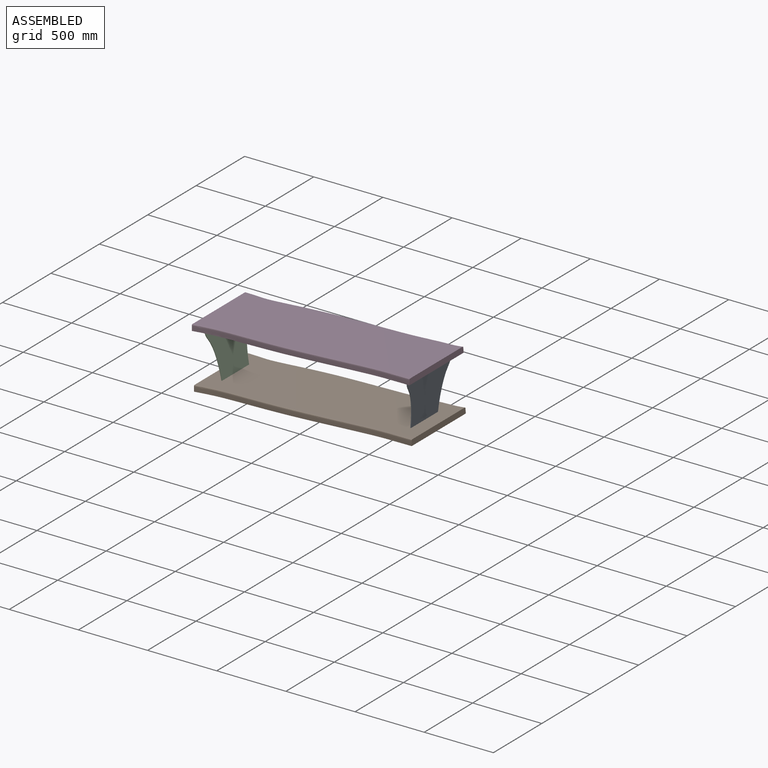
[diagram: assembled view]
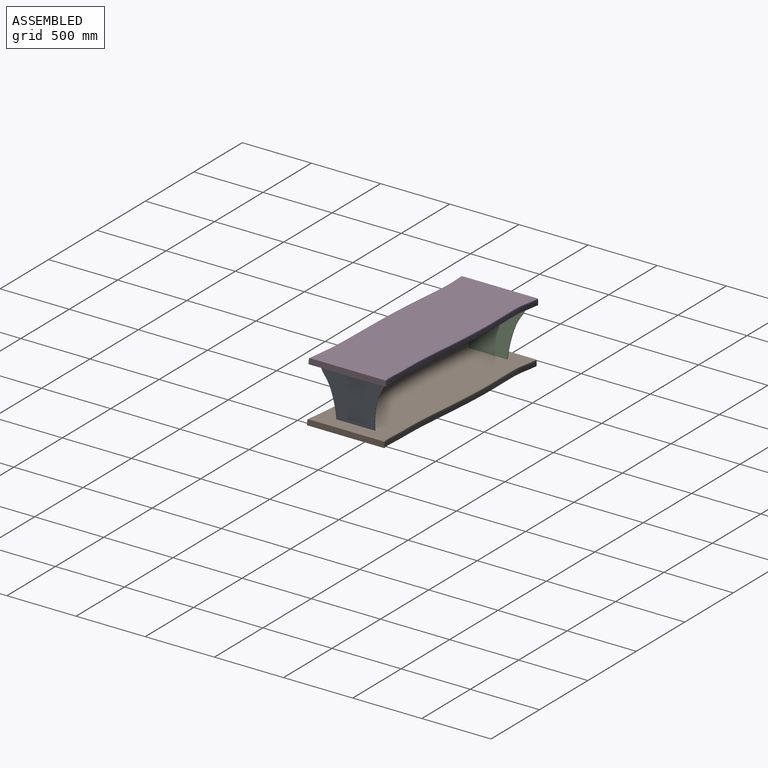
[diagram: assembled view, second angle]
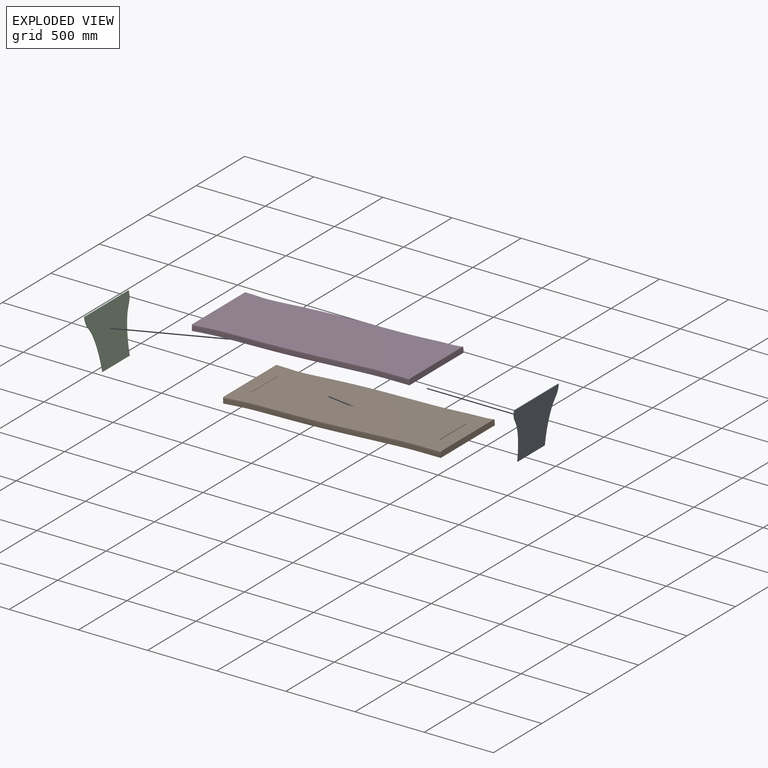
[diagram: exploded view]
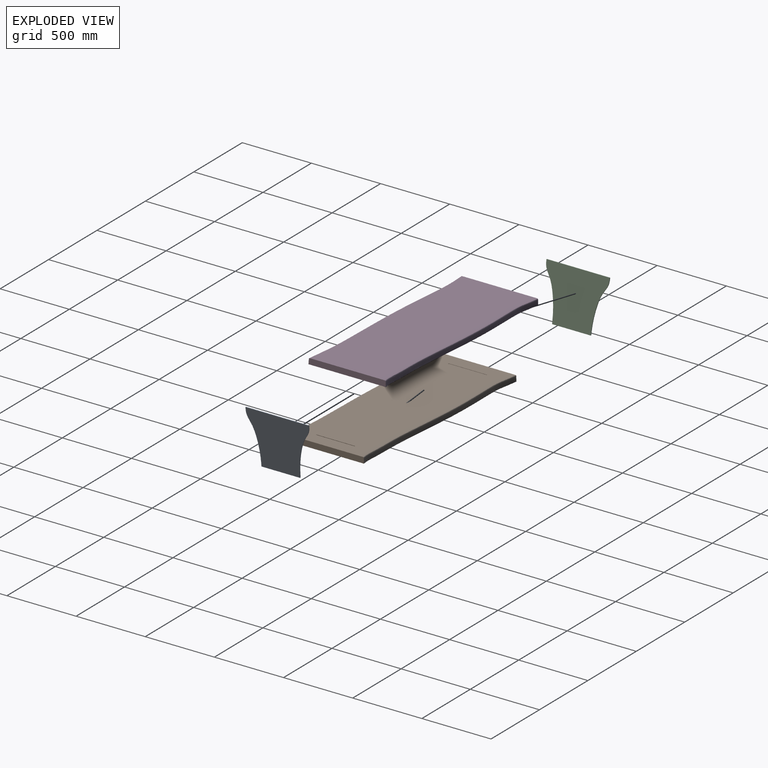
[diagram: exploded view, second angle]
ASSEMBLY  parts=4 mates=3
PART A: 10 faces, bbox 4.8x457.2x381 mm
  f0: extruded ~355.6x88.9mm, area 1771mm2, adj f1,f7,f8,f9
  f1: plane 12.7x4.76mm, normal (0,-1,0), area 60.5mm2, adj f0,f2,f8,f9
  f2: plane 279.4x4.76mm, normal (0,0,-1), area 1330.6mm2, adj f1,f3,f8,f9
  f3: plane 12.7x4.76mm, normal (0,1,0), area 60.5mm2, adj f2,f4,f8,f9
  f4: extruded ~355.6x88.9mm, area 1771mm2, adj f3,f5,f8,f9
  f5: plane 12.7x4.76mm, normal (0,1,0), area 60.5mm2, adj f4,f6,f8,f9
  f6: plane 457.2x4.76mm, normal (0,0,1), area 2177.4mm2, adj f5,f7,f8,f9
  f7: plane 12.7x4.76mm, normal (0,-1,0), area 60.5mm2, adj f0,f6,f8,f9
  f8: plane 457.2x381mm, normal (1,0,0), area 131245.7mm2, adj f0,f1,f2,f3,f4,f5,f6,f7
  f9: plane 457.2x381mm, normal (-1,0,0), area 131245.7mm2, adj f0,f1,f2,f3,f4,f5,f6,f7
PART B: 16 faces, bbox 1676.4x600.3x78.2 mm
  f0: plane 595.5x77.98mm, normal (-1,0,0), area 22981.4mm2, adj f2,f3,f4,f5
  f1: plane 595.74x78.21mm, normal (1,0,0), area 22980.9mm2, adj f2,f3,f4,f5
  f2: plane 1585.53x485.7mm, normal (0,0,1), area 721708.4mm2, adj f0,f1,f4,f5,f7,f8,f9,f10
  f3: plane 1574.81x559.41mm, normal (0,0,-1), area 859020.2mm2, adj f0,f1,f4,f5
  f4: bspline ~1639.41x59.66mm, area 125933.1mm2, adj f0,f1,f2,f3
  f5: bspline ~1590.8x59.6mm, area 124733.1mm2, adj f0,f1,f2,f3
  f6: plane 279.4x4.76mm, normal (0,0,1), area 1330.6mm2, adj f7,f8,f9,f10
  f7: plane 279.4x12.57mm, normal (0.99,0,0.14), area 3548.4mm2, adj f2,f6,f8,f10
  f8: plane 12.57x6.56mm, normal (0,-1,0), area 59.9mm2, adj f2,f6,f7,f9
  f9: plane 279.4x12.57mm, normal (-0.99,0,-0.14), area 3548.4mm2, adj f2,f6,f8,f10
  f10: plane 12.57x6.56mm, normal (0,1,0), area 59.9mm2, adj f2,f6,f7,f9
  f11: plane 279.4x4.76mm, normal (0,0,1), area 1330.6mm2, adj f12,f13,f14,f15
  f12: plane 279.4x12.57mm, normal (-0.99,0,0.14), area 3548.4mm2, adj f2,f11,f13,f15
  f13: plane 12.57x6.56mm, normal (0,-1,0), area 59.9mm2, adj f2,f11,f12,f14
  f14: plane 279.4x12.57mm, normal (0.99,0,-0.14), area 3548.4mm2, adj f2,f11,f13,f15
  f15: plane 12.57x6.56mm, normal (0,1,0), area 59.9mm2, adj f2,f11,f12,f14
PART C: same geometry as A
PART D: 16 faces, bbox 1676.4x600.3x78.2 mm
  f0: plane 595.5x77.98mm, normal (-1,0,0), area 22981.4mm2, adj f2,f3,f4,f5
  f1: plane 595.74x78.21mm, normal (1,0,0), area 22980.9mm2, adj f2,f3,f4,f5
  f2: plane 1585.53x485.7mm, normal (0,0,1), area 724369.7mm2, adj f0,f1,f4,f5
  f3: plane 1574.81x559.41mm, normal (0,0,-1), area 854665.4mm2, adj f0,f1,f4,f5,f7,f8,f9,f10
  f4: bspline ~1639.41x59.66mm, area 125933.1mm2, adj f0,f1,f2,f3
  f5: bspline ~1590.8x59.6mm, area 124733.1mm2, adj f0,f1,f2,f3
  f6: plane 457.2x4.76mm, normal (0,0,-1), area 2177.4mm2, adj f7,f8,f9,f10
  f7: plane 457.2x12.57mm, normal (-0.99,0,-0.14), area 5806.4mm2, adj f3,f6,f8,f10
  f8: plane 12.57x6.56mm, normal (0,-1,0), area 59.9mm2, adj f3,f6,f7,f9
  f9: plane 457.2x12.57mm, normal (0.99,0,0.14), area 5806.4mm2, adj f3,f6,f8,f10
  f10: plane 12.57x6.56mm, normal (0,1,0), area 59.9mm2, adj f3,f6,f7,f9
  f11: plane 457.2x4.76mm, normal (0,0,-1), area 2177.4mm2, adj f12,f13,f14,f15
  f12: plane 457.2x12.57mm, normal (0.99,0,-0.14), area 5806.4mm2, adj f3,f11,f13,f15
  f13: plane 12.57x6.56mm, normal (0,1,0), area 59.9mm2, adj f3,f11,f12,f14
  f14: plane 457.2x12.57mm, normal (-0.99,0,0.14), area 5806.4mm2, adj f3,f11,f13,f15
  f15: plane 12.57x6.56mm, normal (0,-1,0), area 59.9mm2, adj f3,f11,f12,f14
PLACE A rot(axis=(0,1,0),5.8deg) t=(801.86,135.34,366.94)mm
PLACE B rot(axis=(0,-1,0),2.4deg) t=(123.11,135.34,297.6)mm
PLACE C rot(axis=(0,-1,0),10.5deg) t=(-563.73,135.34,309.86)mm
PLACE D rot(axis=(0,-1,0),2.4deg) t=(107.33,135.34,690.57)mm
MATE fastened C.f8 <-> D.f7  axis (0.98,0,0.18) through (-626.2,135.34,672.86)mm
MATE fastened B.f14 <-> A.f9  axis (0.99,0,-0.1) through (800.59,135.34,354.31)mm
MATE fastened C.f8 <-> B.f9  axis (0.98,0,0.18) through (-556.74,135.34,298.25)mm
